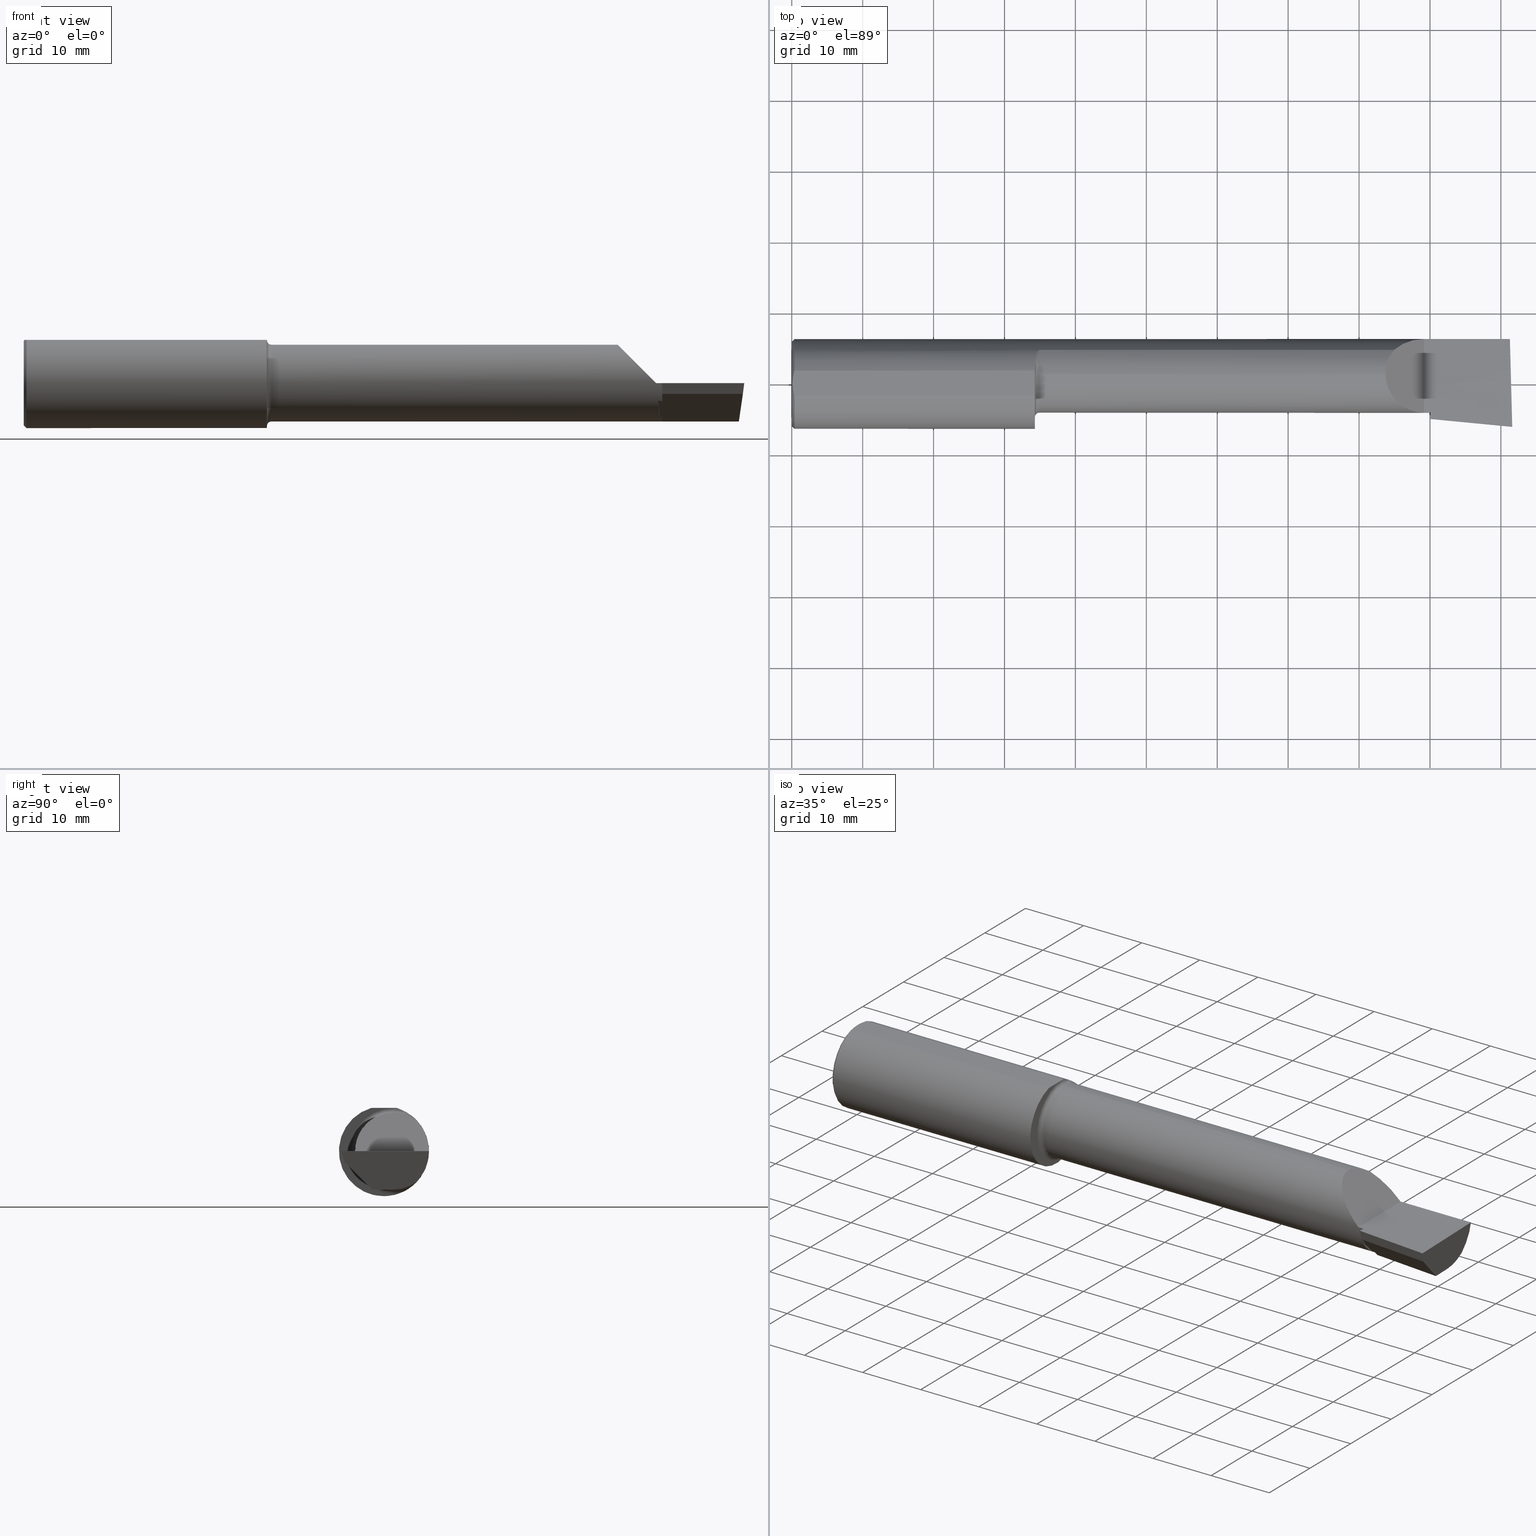
[diagram: canonical four-view strip — front | top / right | iso, engineering-drawing reading convention]
A machine part, canonical four-view strip (front | top / right | iso — engineering-drawing reading convention). The complete STEP part file that produces these views, byte-faithful:
ISO-10303-21;
HEADER;
FILE_DESCRIPTION (( 'STEP AP203' ),
    '1' );
FILE_NAME ('212157-LHB4902600.STEP',
    '2024-08-27T21:25:37',
    ( '' ),
    ( '' ),
    'SwSTEP 2.0',
    'SolidWorks 2024',
    '' );
FILE_SCHEMA (( 'CONFIG_CONTROL_DESIGN' ));
ENDSEC;

DATA;
#1 = AXIS2_PLACEMENT_3D ( 'NONE', #446, #450, #163 ) ;
#2 = CYLINDRICAL_SURFACE ( 'NONE', #194, 0.2131500000000001172 ) ;
#3 = CC_DESIGN_APPROVAL ( #387, ( #364 ) ) ;
#4 = FACE_OUTER_BOUND ( 'NONE', #102, .T. ) ;
#5 = ADVANCED_FACE ( 'NONE', ( #20 ), #556, .F. ) ;
#6 = ORIENTED_EDGE ( 'NONE', *, *, #152, .T. ) ;
#7 = CARTESIAN_POINT ( 'NONE',  ( 1.350000000000000089, 0.05299999999999998462, 0.000000000000000000 ) ) ;
#8 = LINE ( 'NONE', #240, #511 ) ;
#9 = ADVANCED_FACE ( 'NONE', ( #192 ), #590, .F. ) ;
#10 = ADVANCED_FACE ( 'NONE', ( #406 ), #189, .F. ) ;
#11 = ORIENTED_EDGE ( 'NONE', *, *, #284, .F. ) ;
#12 = COORDINATED_UNIVERSAL_TIME_OFFSET ( 8, 0, .BEHIND. ) ;
#13 = B_SPLINE_CURVE_WITH_KNOTS ( 'NONE', 3,
 ( #359, #78, #254, #309, #537, #716, #720, #126, #18, #644, #477, #481, #356, #412 ),
 .UNSPECIFIED., .F., .F.,
 ( 4, 2, 2, 2, 2, 2, 4 ),
 ( 1.967619685288262155E-07, 0.0001090840123077900287, 0.0002179712626470512338, 0.0004357457633255848385, 0.0008712947646826517227, 0.001742392767396792538, 0.003484588772825071568 ),
 .UNSPECIFIED. ) ;
#14 = LINE ( 'NONE', #585, #606 ) ;
#15 = ORIENTED_EDGE ( 'NONE', *, *, #437, .F. ) ;
#16 = COORDINATED_UNIVERSAL_TIME_OFFSET ( 8, 0, .BEHIND. ) ;
#17 = VECTOR ( 'NONE', #681, 39.37007874015748143 ) ;
#18 = CARTESIAN_POINT ( 'NONE',  ( 1.361285743882607813, 0.1704402150608099187, -0.1827701868778712491 ) ) ;
#19 = VECTOR ( 'NONE', #659, 39.37007874015748143 ) ;
#20 = FACE_OUTER_BOUND ( 'NONE', #502, .T. ) ;
#21 = EDGE_CURVE ( 'NONE', #478, #242, #550, .T. ) ;
#22 = CARTESIAN_POINT ( 'NONE',  ( 0.01499999999999965423, -0.06997856814768402267, 0.2398500000000000076 ) ) ;
#23 = VERTEX_POINT ( 'NONE', #205 ) ;
#24 = CC_DESIGN_DATE_AND_TIME_ASSIGNMENT ( #370, #209, ( #724 ) ) ;
#25 =( NAMED_UNIT ( * ) PLANE_ANGLE_UNIT ( ) SI_UNIT ( $, .RADIAN. ) );
#26 = CARTESIAN_POINT ( 'NONE',  ( 1.375000000000000000, 0.05299999999999998462, 0.2131500000000002559 ) ) ;
#27 = VERTEX_POINT ( 'NONE', #97 ) ;
#28 = DIRECTION ( 'NONE',  ( 0.000000000000000000, 0.000000000000000000, -1.000000000000000000 ) ) ;
#29 = CIRCLE ( 'NONE', #1, 0.2348499999999996424 ) ;
#30 = ORIENTED_EDGE ( 'NONE', *, *, #319, .T. ) ;
#31 = CIRCLE ( 'NONE', #474, 0.2131500000000002559 ) ;
#32 = CARTESIAN_POINT ( 'NONE',  ( 3.522499172395930245, -0.1369718963205480700, -0.09666230448512481976 ) ) ;
#33 = LINE ( 'NONE', #273, #17 ) ;
#34 = ORIENTED_EDGE ( 'NONE', *, *, #120, .F. ) ;
#35 = DIRECTION ( 'NONE',  ( 0.000000000000000000, 0.000000000000000000, 1.000000000000000000 ) ) ;
#36 = LINE ( 'NONE', #327, #710 ) ;
#37 = VERTEX_POINT ( 'NONE', #726 ) ;
#38 = ADVANCED_FACE ( 'NONE', ( #441 ), #643, .T. ) ;
#39 = DIRECTION ( 'NONE',  ( -1.000000000000000000, -0.000000000000000000, -0.000000000000000000 ) ) ;
#40 = CARTESIAN_POINT ( 'NONE',  ( 1.350331894516964448, 0.1014003285145106820, 0.2286243840132591576 ) ) ;
#41 = EDGE_LOOP ( 'NONE', ( #348, #357, #713, #362 ) ) ;
#42 = TOROIDAL_SURFACE ( 'NONE', #712, 0.2381500000000002781, 0.02499999999999993894 ) ;
#43 = CARTESIAN_POINT ( 'NONE',  ( 0.000000000000000000, 2.967931517733608178E-17, 0.2348499999999996424 ) ) ;
#44 = DIRECTION ( 'NONE',  ( 0.000000000000000000, -0.7025528302622683352, 0.7116315905652843554 ) ) ;
#45 = ORIENTED_EDGE ( 'NONE', *, *, #165, .F. ) ;
#46 = DIRECTION ( 'NONE',  ( 0.000000000000000000, -0.3019700370129918543, 0.9533174165755979867 ) ) ;
#47 = DIRECTION ( 'NONE',  ( -1.000000000000000000, -0.000000000000000000, -0.000000000000000000 ) ) ;
#48 = VERTEX_POINT ( 'NONE', #375 ) ;
#49 = DIRECTION ( 'NONE',  ( 0.000000000000000000, 0.000000000000000000, 1.000000000000000000 ) ) ;
#50 = CARTESIAN_POINT ( 'NONE',  ( 1.350000000000000089, 0.05299999999999998462, 0.2381500000000002781 ) ) ;
#51 = ORIENTED_EDGE ( 'NONE', *, *, #130, .T. ) ;
#52 = VECTOR ( 'NONE', #383, 39.37007874015748143 ) ;
#53 = CARTESIAN_POINT ( 'NONE',  ( 3.531082512009719565, -0.04783050615766638175, -0.1877927888072085660 ) ) ;
#54 = CARTESIAN_POINT ( 'NONE',  ( 0.01499999999999998904, 0.06997856814768362022, 0.2398500000000000076 ) ) ;
#55 = ORIENTED_EDGE ( 'NONE', *, *, #664, .F. ) ;
#56 = DIRECTION ( 'NONE',  ( -1.000000000000000000, -0.000000000000000000, -0.000000000000000000 ) ) ;
#57 = CARTESIAN_POINT ( 'NONE',  ( 3.296849999999997394, -0.07186037918017486315, 0.2131500000000002004 ) ) ;
#58 = ORIENTED_EDGE ( 'NONE', *, *, #534, .F. ) ;
#59 = EDGE_CURVE ( 'NONE', #196, #23, #77, .T. ) ;
#60 = LINE ( 'NONE', #693, #631 ) ;
#61 = CARTESIAN_POINT ( 'NONE',  ( 0.000000000000000000, 0.000000000000000000, 0.000000000000000000 ) ) ;
#62 = ORIENTED_EDGE ( 'NONE', *, *, #740, .F. ) ;
#63 = CIRCLE ( 'NONE', #204, 0.2498499999999999888 ) ;
#64 = PERSON_AND_ORGANIZATION_ROLE ( 'design_owner' ) ;
#65 = AXIS2_PLACEMENT_3D ( 'NONE', #227, #443, #231 ) ;
#66 = EDGE_CURVE ( 'NONE', #27, #249, #33, .T. ) ;
#67 = CARTESIAN_POINT ( 'NONE',  ( 3.509999999999999787, -0.1601500000000002089, -6.245698675651498620E-17 ) ) ;
#68 = ORIENTED_EDGE ( 'NONE', *, *, #243, .T. ) ;
#69 = DATE_AND_TIME ( #706, #247 ) ;
#70 = PLANE ( 'NONE',  #175 ) ;
#71 = CARTESIAN_POINT ( 'NONE',  ( 3.544999999999999929, -0.2043384830701200638, 0.000000000000000000 ) ) ;
#72 = DIRECTION ( 'NONE',  ( 0.9953961983671787417, -0.09584575252022421721, -0.000000000000000000 ) ) ;
#73 = DIRECTION ( 'NONE',  ( -1.000000000000000000, -0.000000000000000000, -0.000000000000000000 ) ) ;
#74 = ADVANCED_FACE ( 'NONE', ( #386 ), #505, .F. ) ;
#75 = CARTESIAN_POINT ( 'NONE',  ( 3.522499172395930245, -0.1369718963205480700, -0.09666230448512481976 ) ) ;
#76 = CIRCLE ( 'NONE', #496, 0.2498499999999999888 ) ;
#77 = CIRCLE ( 'NONE', #429, 0.2381500000000002781 ) ;
#78 = CARTESIAN_POINT ( 'NONE',  ( 1.373547768521294454, 0.1868028301886778819, -0.1659208399614104379 ) ) ;
#79 = AXIS2_PLACEMENT_3D ( 'NONE', #757, #452, #714 ) ;
#80 = ORIENTED_EDGE ( 'NONE', *, *, #425, .T. ) ;
#81 = CARTESIAN_POINT ( 'NONE',  ( 3.519046046773248282, -0.1728339770796963881, -0.06000000000000012962 ) ) ;
#82 = VERTEX_POINT ( 'NONE', #198 ) ;
#83 = EDGE_CURVE ( 'NONE', #702, #169, #523, .T. ) ;
#84 = CARTESIAN_POINT ( 'NONE',  ( 1.375000000000000000, 0.05299999999999998462, 0.2381500000000002781 ) ) ;
#85 = VERTEX_POINT ( 'NONE', #320 ) ;
#86 = EDGE_CURVE ( 'NONE', #448, #23, #63, .T. ) ;
#87 = CARTESIAN_POINT ( 'NONE',  ( 3.527364221733843230, -0.08644642713185432537, -0.1670589636038931347 ) ) ;
#88 = AXIS2_PLACEMENT_3D ( 'NONE', #212, #47, #261 ) ;
#89 = CARTESIAN_POINT ( 'NONE',  ( 1.373549916698492135, 0.1868028301886779374, 0.1659208399614103269 ) ) ;
#90 = VECTOR ( 'NONE', #500, 39.37007874015748143 ) ;
#91 = ORIENTED_EDGE ( 'NONE', *, *, #21, .T. ) ;
#92 = PERSON_AND_ORGANIZATION_ROLE ( 'design_supplier' ) ;
#93 = LINE ( 'NONE', #374, #52 ) ;
#94 = DIRECTION ( 'NONE',  ( -1.000000000000000000, -0.000000000000000000, -0.000000000000000000 ) ) ;
#95 = ORIENTED_EDGE ( 'NONE', *, *, #540, .F. ) ;
#96 = DIRECTION ( 'NONE',  ( -1.000000000000000000, -0.000000000000000000, -0.000000000000000000 ) ) ;
#97 = CARTESIAN_POINT ( 'NONE',  ( 3.992367153641839472, -0.2184096159518785774, -0.06000000000000012268 ) ) ;
#98 = EDGE_LOOP ( 'NONE', ( #95, #108, #55, #650, #434 ) ) ;
#99 = CARTESIAN_POINT ( 'NONE',  ( 3.968970726278978400, 0.1868028301886787701, -0.1659208399614094387 ) ) ;
#100 = DIRECTION ( 'NONE',  ( -0.000000000000000000, 0.000000000000000000, 1.000000000000000000 ) ) ;
#101 = VECTOR ( 'NONE', #290, 39.37007874015748854 ) ;
#102 = EDGE_LOOP ( 'NONE', ( #15, #91, #417 ) ) ;
#103 = CIRCLE ( 'NONE', #373, 0.2498499999999999888 ) ;
#104 = CARTESIAN_POINT ( 'NONE',  ( 3.544999999999999929, -0.1952503421026562380, 0.002878732955684667853 ) ) ;
#105 = CARTESIAN_POINT ( 'NONE',  ( 1.350000000000000089, 0.05299999999999998462, 0.000000000000000000 ) ) ;
#106 = CARTESIAN_POINT ( 'NONE',  ( 0.01499999999999998904, 0.000000000000000000, -0.2498499999999999888 ) ) ;
#107 = DIRECTION ( 'NONE',  ( 0.000000000000000000, 0.000000000000000000, 1.000000000000000000 ) ) ;
#108 = ORIENTED_EDGE ( 'NONE', *, *, #405, .T. ) ;
#109 = FACE_OUTER_BOUND ( 'NONE', #41, .T. ) ;
#110 = DIRECTION ( 'NONE',  ( 1.000000000000000000, 0.000000000000000000, 0.000000000000000000 ) ) ;
#111 = ORIENTED_EDGE ( 'NONE', *, *, #552, .F. ) ;
#112 = CIRCLE ( 'NONE', #535, 0.02499999999999993894 ) ;
#113 = FACE_OUTER_BOUND ( 'NONE', #531, .T. ) ;
#114 = CARTESIAN_POINT ( 'NONE',  ( 3.531082512009719565, -0.04783050615766638175, -0.1877927888072085660 ) ) ;
#115 = ORIENTED_EDGE ( 'NONE', *, *, #571, .F. ) ;
#116 = CARTESIAN_POINT ( 'NONE',  ( 4.000317226026191442, -0.2499915017238489578, -1.366403949535045289E-16 ) ) ;
#117 = CARTESIAN_POINT ( 'NONE',  ( 0.000000000000000000, 0.000000000000000000, 0.000000000000000000 ) ) ;
#118 = ORIENTED_EDGE ( 'NONE', *, *, #544, .T. ) ;
#119 = PRODUCT_DEFINITION ( 'UNKNOWN', '', #364, #223 ) ;
#120 = EDGE_CURVE ( 'NONE', #213, #27, #547, .T. ) ;
#121 = PLANE ( 'NONE',  #330 ) ;
#122 = ORIENTED_EDGE ( 'NONE', *, *, #86, .T. ) ;
#123 = CC_DESIGN_PERSON_AND_ORGANIZATION_ASSIGNMENT ( #548, #492, ( #364 ) ) ;
#124 = AXIS2_PLACEMENT_3D ( 'NONE', #588, #479, #707 ) ;
#125 =( LENGTH_UNIT ( ) NAMED_UNIT ( * ) SI_UNIT ( $, .METRE. ) );
#126 = CARTESIAN_POINT ( 'NONE',  ( 1.362797058507744907, 0.1743943839926571093, -0.1789958554125714307 ) ) ;
#127 = ORIENTED_EDGE ( 'NONE', *, *, #59, .F. ) ;
#128 = APPROVAL_STATUS ( 'not_yet_approved' ) ;
#129 = CARTESIAN_POINT ( 'NONE',  ( 3.519046046773248282, -0.1728339770796963881, -0.06000000000000012962 ) ) ;
#130 = EDGE_CURVE ( 'NONE', #675, #756, #668, .T. ) ;
#131 = ORIENTED_EDGE ( 'NONE', *, *, #272, .T. ) ;
#132 = DATE_AND_TIME ( #244, #658 ) ;
#133 = LINE ( 'NONE', #420, #19 ) ;
#134 = EDGE_LOOP ( 'NONE', ( #30, #366 ) ) ;
#135 = CARTESIAN_POINT ( 'NONE',  ( 1.350000000000000089, 0.05300000000000001238, -0.2381500000000002781 ) ) ;
#136 = CIRCLE ( 'NONE', #510, 0.02499999999999993894 ) ;
#137 = FACE_OUTER_BOUND ( 'NONE', #262, .T. ) ;
#138 = DIRECTION ( 'NONE',  ( -0.09584575252022362046, -0.9953961983671787417, 0.000000000000000000 ) ) ;
#139 =( BOUNDED_CURVE ( )  B_SPLINE_CURVE ( 3, ( #577, #57, #524, #67 ),
 .UNSPECIFIED., .F., .T. ) 
 B_SPLINE_CURVE_WITH_KNOTS ( ( 4, 4 ),
 ( 0.000000000000000000, 1.570796326794896780 ),
 .UNSPECIFIED. ) 
 CURVE ( )  GEOMETRIC_REPRESENTATION_ITEM ( )  RATIONAL_B_SPLINE_CURVE ( ( 1.000000000000000000, 0.8047378541243649375, 0.8047378541243649375, 1.000000000000000000 ) ) 
 REPRESENTATION_ITEM ( '' )  );
#140 = PERSON ( 'UNSPECIFIED', 'UNSPECIFIED', 'UNSPECIFIED', ('UNSPECIFIED'), ('UNSPECIFIED'), ('UNSPECIFIED') ) ;
#141 = PERSON_AND_ORGANIZATION ( #140, #235 ) ;
#142 = DIRECTION ( 'NONE',  ( -0.000000000000000000, 2.565624566557734573E-16, 1.000000000000000000 ) ) ;
#143 = ORIENTED_EDGE ( 'NONE', *, *, #678, .T. ) ;
#144 = CARTESIAN_POINT ( 'NONE',  ( 1.361269318387891447, 0.1703938977634091023, 0.1828127877825263536 ) ) ;
#145 = FACE_OUTER_BOUND ( 'NONE', #626, .T. ) ;
#146 = CLOSED_SHELL ( 'NONE', ( #5, #694, #38, #633, #482, #715, #619, #730, #363, #401, #589, #275, #267, #185, #285, #413, #609, #74, #10, #9, #323 ) ) ;
#147 = CARTESIAN_POINT ( 'NONE',  ( 3.544999999999999929, -0.2196470971618798007, -0.01511331185988431559 ) ) ;
#148 = CIRCLE ( 'NONE', #567, 0.2381500000000002781 ) ;
#149 = CC_DESIGN_APPROVAL ( #210, ( #724 ) ) ;
#150 = VERTEX_POINT ( 'NONE', #674 ) ;
#151 = DIRECTION ( 'NONE',  ( -1.000000000000000000, -0.000000000000000000, -0.000000000000000000 ) ) ;
#152 = EDGE_CURVE ( 'NONE', #312, #696, #76, .T. ) ;
#153 = CARTESIAN_POINT ( 'NONE',  ( 1.350000000000000089, 0.000000000000000000, 0.000000000000000000 ) ) ;
#154 = EDGE_LOOP ( 'NONE', ( #533, #80, #451, #514 ) ) ;
#155 = CALENDAR_DATE ( 2024, 27, 8 ) ;
#156 = CARTESIAN_POINT ( 'NONE',  ( 2.459999999999999964, 0.1868028301886787701, -0.1659208399614094387 ) ) ;
#157 = CARTESIAN_POINT ( 'NONE',  ( 1.375000000000000000, 0.1868028301886778542, 0.1659208399614103824 ) ) ;
#158 = ORIENTED_EDGE ( 'NONE', *, *, #86, .F. ) ;
#159 = FACE_OUTER_BOUND ( 'NONE', #637, .T. ) ;
#160 = DIRECTION ( 'NONE',  ( 1.000000000000000000, 0.000000000000000000, 0.000000000000000000 ) ) ;
#161 = AXIS2_PLACEMENT_3D ( 'NONE', #61, #628, #180 ) ;
#162 = ORIENTED_EDGE ( 'NONE', *, *, #305, .T. ) ;
#163 = DIRECTION ( 'NONE',  ( 0.000000000000000000, 0.000000000000000000, 1.000000000000000000 ) ) ;
#164 = VERTEX_POINT ( 'NONE', #622 ) ;
#165 = EDGE_CURVE ( 'NONE', #360, #85, #36, .T. ) ;
#166 = CARTESIAN_POINT ( 'NONE',  ( 0.004999999999999972349, 0.01185123536186988465, 0.2398500000000000631 ) ) ;
#167 =( BOUNDED_CURVE ( )  B_SPLINE_CURVE ( 3, ( #549, #558, #543, #381 ),
 .UNSPECIFIED., .F., .T. ) 
 B_SPLINE_CURVE_WITH_KNOTS ( ( 4, 4 ),
 ( 5.604538515477365479, 6.283185307179586232 ),
 .UNSPECIFIED. ) 
 CURVE ( )  GEOMETRIC_REPRESENTATION_ITEM ( )  RATIONAL_B_SPLINE_CURVE ( ( 1.000000000000000000, 0.9619867256453044080, 0.9619867256453044080, 1.000000000000000000 ) ) 
 REPRESENTATION_ITEM ( '' )  );
#168 = CARTESIAN_POINT ( 'NONE',  ( 3.509999999999999787, -0.2500000000000000555, -6.245698675651498620E-17 ) ) ;
#169 = VERTEX_POINT ( 'NONE', #562 ) ;
#170 = CARTESIAN_POINT ( 'NONE',  ( 3.540481425188584996, -0.04977693083852388622, -0.1867379188486351094 ) ) ;
#171 = CARTESIAN_POINT ( 'NONE',  ( 3.344079160038586629, 0.1868028301886766884, 0.1659208399614114093 ) ) ;
#172 = EDGE_CURVE ( 'NONE', #23, #542, #580, .T. ) ;
#173 = ORIENTED_EDGE ( 'NONE', *, *, #405, .F. ) ;
#174 = VECTOR ( 'NONE', #522, 39.37007874015748143 ) ;
#175 = AXIS2_PLACEMENT_3D ( 'NONE', #81, #532, #466 ) ;
#176 = DIRECTION ( 'NONE',  ( -1.000000000000000000, -0.000000000000000000, -0.000000000000000000 ) ) ;
#177 = DIRECTION ( 'NONE',  ( 1.000000000000000000, 0.000000000000000000, 0.000000000000000000 ) ) ;
#178 = ORIENTED_EDGE ( 'NONE', *, *, #487, .F. ) ;
#179 = CARTESIAN_POINT ( 'NONE',  ( 0.009312860630924867100, 0.04712480857212034135, 0.2398500000000000076 ) ) ;
#180 = DIRECTION ( 'NONE',  ( 0.000000000000000000, 0.000000000000000000, -1.000000000000000000 ) ) ;
#181 = ORIENTED_EDGE ( 'NONE', *, *, #464, .F. ) ;
#182 = APPROVAL_STATUS ( 'not_yet_approved' ) ;
#183 = DIRECTION ( 'NONE',  ( -0.000000000000000000, 1.000000000000000000, -2.565624566557734573E-16 ) ) ;
#184 = DIRECTION ( 'NONE',  ( -0.9953961983671788527, 0.09584575252022363434, -3.696849664254116701E-16 ) ) ;
#185 = ADVANCED_FACE ( 'NONE', ( #666 ), #697, .T. ) ;
#186 = AXIS2_PLACEMENT_3D ( 'NONE', #259, #322, #486 ) ;
#187 = PLANE ( 'NONE',  #525 ) ;
#188 = ORIENTED_EDGE ( 'NONE', *, *, #83, .T. ) ;
#189 = PLANE ( 'NONE',  #292 ) ;
#190 = CARTESIAN_POINT ( 'NONE',  ( 3.966963271960172399, 0.05299999999999996381, -0.2131499999999999784 ) ) ;
#191 = EDGE_CURVE ( 'NONE', #756, #169, #136, .T. ) ;
#192 = FACE_OUTER_BOUND ( 'NONE', #134, .T. ) ;
#193 = VECTOR ( 'NONE', #701, 39.37007874015748143 ) ;
#194 = AXIS2_PLACEMENT_3D ( 'NONE', #635, #392, #281 ) ;
#195 = DIRECTION ( 'NONE',  ( 0.000000000000000000, 1.000000000000000000, -1.138839417068643993E-16 ) ) ;
#196 = VERTEX_POINT ( 'NONE', #50 ) ;
#197 = DIMENSIONAL_EXPONENTS ( 1.000000000000000000, 0.000000000000000000, 0.000000000000000000, 0.000000000000000000, 0.000000000000000000, 0.000000000000000000, 0.000000000000000000 ) ;
#198 = CARTESIAN_POINT ( 'NONE',  ( 0.004999999999999696527, 5.665694022114171174E-17, 0.2398500000000000076 ) ) ;
#199 = CARTESIAN_POINT ( 'NONE',  ( 3.519046046773248282, -0.1728339770796963881, -0.06000000000000012962 ) ) ;
#200 = CARTESIAN_POINT ( 'NONE',  ( 1.369294329172793256, 0.1841965204963173230, 0.1688138510234151457 ) ) ;
#201 = EDGE_LOOP ( 'NONE', ( #380, #143, #340, #115, #58 ) ) ;
#202 = DATE_AND_TIME ( #422, #447 ) ;
#203 = CARTESIAN_POINT ( 'NONE',  ( 3.988460977461673274, -0.06683733097719073146, -0.2131499999999999506 ) ) ;
#204 = AXIS2_PLACEMENT_3D ( 'NONE', #153, #94, #554 ) ;
#205 = CARTESIAN_POINT ( 'NONE',  ( 1.350000000000000089, 0.08036415094339502407, 0.2365726648265754628 ) ) ;
#206 = AXIS2_PLACEMENT_3D ( 'NONE', #686, #395, #576 ) ;
#207 = ORIENTED_EDGE ( 'NONE', *, *, #191, .T. ) ;
#208 = PRODUCT_DEFINITION_SHAPE ( 'NONE', 'NONE',  #119 ) ;
#209 = DATE_TIME_ROLE ( 'classification_date' ) ;
#210 = APPROVAL ( #614, 'UNSPECIFIED' ) ;
#211 = CARTESIAN_POINT ( 'NONE',  ( 1.375000000000000000, 0.05299999999999998462, 0.000000000000000000 ) ) ;
#212 = CARTESIAN_POINT ( 'NONE',  ( 1.350000000000000089, 0.05299999999999998462, 0.000000000000000000 ) ) ;
#213 = VERTEX_POINT ( 'NONE', #573 ) ;
#214 =( BOUNDED_CURVE ( )  B_SPLINE_CURVE ( 3, ( #615, #608, #493, #99 ),
 .UNSPECIFIED., .F., .T. ) 
 B_SPLINE_CURVE_WITH_KNOTS ( ( 4, 4 ),
 ( 6.060671081087565248, 6.739317872789799324 ),
 .UNSPECIFIED. ) 
 CURVE ( )  GEOMETRIC_REPRESENTATION_ITEM ( )  RATIONAL_B_SPLINE_CURVE ( ( 1.000000000000000000, 0.9619867256453029647, 0.9619867256453029647, 1.000000000000000000 ) ) 
 REPRESENTATION_ITEM ( '' )  );
#215 = CARTESIAN_POINT ( 'NONE',  ( 3.296849999999997838, 0.05299999999999998462, 0.2131500000000001172 ) ) ;
#216 = DIRECTION ( 'NONE',  ( 0.000000000000000000, 0.000000000000000000, 1.000000000000000000 ) ) ;
#217 = EDGE_CURVE ( 'NONE', #321, #696, #390, .T. ) ;
#218 = EDGE_LOOP ( 'NONE', ( #439, #729, #629, #6, #277 ) ) ;
#219 = DIRECTION ( 'NONE',  ( 0.000000000000000000, 0.000000000000000000, -1.000000000000000000 ) ) ;
#220 = CIRCLE ( 'NONE', #752, 0.2348499999999996424 ) ;
#221 = ORIENTED_EDGE ( 'NONE', *, *, #379, .T. ) ;
#222 = VECTOR ( 'NONE', #295, 39.37007874015748143 ) ;
#223 = DESIGN_CONTEXT ( 'detailed design', #735, 'design' ) ;
#224 = DIRECTION ( 'NONE',  ( -1.000000000000000000, -0.000000000000000000, -0.000000000000000000 ) ) ;
#225 = DIRECTION ( 'NONE',  ( 0.000000000000000000, 1.000000000000000000, -1.138839417068643993E-16 ) ) ;
#226 = ORIENTED_EDGE ( 'NONE', *, *, #552, .T. ) ;
#227 = CARTESIAN_POINT ( 'NONE',  ( 1.375000000000000000, 0.05299999999999998462, 0.000000000000000000 ) ) ;
#228 = FACE_OUTER_BOUND ( 'NONE', #98, .T. ) ;
#229 = ORIENTED_EDGE ( 'NONE', *, *, #508, .T. ) ;
#230 = EDGE_CURVE ( 'NONE', #461, #82, #463, .T. ) ;
#231 = DIRECTION ( 'NONE',  ( 0.000000000000000000, 0.000000000000000000, 1.000000000000000000 ) ) ;
#232 = CARTESIAN_POINT ( 'NONE',  ( 3.544999999999999929, -0.2500000000000000555, -6.775237339413629936E-17 ) ) ;
#233 = VERTEX_POINT ( 'NONE', #279 ) ;
#234 = VECTOR ( 'NONE', #636, 39.37007874015748854 ) ;
#235 = ORGANIZATION ( 'UNSPECIFIED', 'UNSPECIFIED', '' ) ;
#236 = CARTESIAN_POINT ( 'NONE',  ( 1.350000000000000089, 0.08036415094339502407, -0.2365726648265754628 ) ) ;
#237 = DIRECTION ( 'NONE',  ( 0.000000000000000000, 0.000000000000000000, -1.000000000000000000 ) ) ;
#238 = ORIENTED_EDGE ( 'NONE', *, *, #647, .T. ) ;
#239 =( NAMED_UNIT ( * ) SI_UNIT ( $, .STERADIAN. ) SOLID_ANGLE_UNIT ( ) );
#240 = CARTESIAN_POINT ( 'NONE',  ( 3.544999999999999929, 0.05299999999999996381, -0.2131499999999999784 ) ) ;
#241 =( BOUNDED_CURVE ( )  B_SPLINE_CURVE ( 3, ( #553, #87, #318, #32 ),
 .UNSPECIFIED., .F., .F. ) 
 B_SPLINE_CURVE_WITH_KNOTS ( ( 4, 4 ),
 ( 5.205137849474835932, 5.812503257434991966 ),
 .UNSPECIFIED. ) 
 CURVE ( )  GEOMETRIC_REPRESENTATION_ITEM ( )  RATIONAL_B_SPLINE_CURVE ( ( 1.000000000000000000, 0.9694944665783495896, 0.9694944665783495896, 1.000000000000000000 ) ) 
 REPRESENTATION_ITEM ( '' )  );
#242 = VERTEX_POINT ( 'NONE', #336 ) ;
#243 = EDGE_CURVE ( 'NONE', #461, #321, #220, .T. ) ;
#244 = CALENDAR_DATE ( 2024, 27, 8 ) ;
#245 = ORIENTED_EDGE ( 'NONE', *, *, #354, .T. ) ;
#246 = COORDINATED_UNIVERSAL_TIME_OFFSET ( 8, 0, .BEHIND. ) ;
#247 = LOCAL_TIME ( 14, 25, 37.00000000000000000, #16 ) ;
#248 = DIRECTION ( 'NONE',  ( -0.02677973311239342791, 0.9996413586354002678, -2.562123829027519895E-16 ) ) ;
#249 = VERTEX_POINT ( 'NONE', #512 ) ;
#250 = LENGTH_MEASURE_WITH_UNIT ( LENGTH_MEASURE( 0.02539999999999999897 ), #125 );
#251 = DIRECTION ( 'NONE',  ( 0.000000000000000000, -1.000000000000000000, 2.565624566557734573E-16 ) ) ;
#252 = ORIENTED_EDGE ( 'NONE', *, *, #431, .T. ) ;
#253 = APPROVAL_ROLE ( '' ) ;
#254 = CARTESIAN_POINT ( 'NONE',  ( 1.372232603162240716, 0.1862758070845859371, -0.1665151405181443944 ) ) ;
#255 = EDGE_CURVE ( 'NONE', #85, #242, #352, .T. ) ;
#256 = ORIENTED_EDGE ( 'NONE', *, *, #66, .F. ) ;
#257 = PERSON_AND_ORGANIZATION_ROLE ( 'classification_officer' ) ;
#258 = VECTOR ( 'NONE', #72, 39.37007874015748143 ) ;
#259 = CARTESIAN_POINT ( 'NONE',  ( 0.01499999999999998904, 0.000000000000000000, 0.000000000000000000 ) ) ;
#260 = CARTESIAN_POINT ( 'NONE',  ( 3.986926801651458074, 0.2498499999999998500, -1.346424553798598529E-16 ) ) ;
#261 = DIRECTION ( 'NONE',  ( 0.000000000000000000, 0.000000000000000000, 1.000000000000000000 ) ) ;
#262 = EDGE_LOOP ( 'NONE', ( #11, #483, #131, #688 ) ) ;
#263 = ADVANCED_BREP_SHAPE_REPRESENTATION ( '212157-LHB4902600', ( #460, #342 ), #620 ) ;
#264 = DIRECTION ( 'NONE',  ( 0.000000000000000000, 0.000000000000000000, 1.000000000000000000 ) ) ;
#265 = DIRECTION ( 'NONE',  ( 0.000000000000000000, 0.000000000000000000, -1.000000000000000000 ) ) ;
#266 = ORIENTED_EDGE ( 'NONE', *, *, #705, .F. ) ;
#267 = ADVANCED_FACE ( 'NONE', ( #403 ), #396, .F. ) ;
#268 = APPROVAL_PERSON_ORGANIZATION ( #355, #598, #253 ) ;
#269 = CARTESIAN_POINT ( 'NONE',  ( 1.367022161877249786, 0.1817412653940176370, 0.1714670312165152977 ) ) ;
#270 = EDGE_LOOP ( 'NONE', ( #653, #600, #245, #708, #683, #111, #742, #723, #122, #517, #238, #495, #369 ) ) ;
#271 = CARTESIAN_POINT ( 'NONE',  ( 3.544999999999999929, -0.02413689554465599241, -0.2131499999999999506 ) ) ;
#272 = EDGE_CURVE ( 'NONE', #509, #37, #139, .T. ) ;
#273 = CARTESIAN_POINT ( 'NONE',  ( 3.984159346317754036, -0.1618214701366293695, -0.1165188729350217778 ) ) ;
#274 = CARTESIAN_POINT ( 'NONE',  ( 0.004999999999999696527, 5.665694022114171174E-17, 0.2398500000000000076 ) ) ;
#275 = ADVANCED_FACE ( 'NONE', ( #4 ), #564, .F. ) ;
#276 = CARTESIAN_POINT ( 'NONE',  ( 1.351680899895053800, 0.1215019751025615963, 0.2186055937858621401 ) ) ;
#277 = ORIENTED_EDGE ( 'NONE', *, *, #217, .F. ) ;
#278 = CARTESIAN_POINT ( 'NONE',  ( 0.000000000000000000, 0.000000000000000000, 0.000000000000000000 ) ) ;
#279 = CARTESIAN_POINT ( 'NONE',  ( 3.544999999999999929, -0.1943384830701201105, 4.684692457885201525E-16 ) ) ;
#280 = EDGE_LOOP ( 'NONE', ( #579, #465, #314, #226, #613 ) ) ;
#281 = DIRECTION ( 'NONE',  ( 0.000000000000000000, 0.000000000000000000, 1.000000000000000000 ) ) ;
#282 = LINE ( 'NONE', #632, #618 ) ;
#283 = VERTEX_POINT ( 'NONE', #114 ) ;
#284 = EDGE_CURVE ( 'NONE', #164, #48, #603, .T. ) ;
#285 = ADVANCED_FACE ( 'NONE', ( #228 ), #121, .F. ) ;
#286 = CARTESIAN_POINT ( 'NONE',  ( 0.01499999999999965423, -0.06997856814768402267, 0.2398500000000000076 ) ) ;
#287 = ORIENTED_EDGE ( 'NONE', *, *, #487, .T. ) ;
#288 = CC_DESIGN_PERSON_AND_ORGANIZATION_ASSIGNMENT ( #737, #257, ( #724 ) ) ;
#289 = CARTESIAN_POINT ( 'NONE',  ( 0.000000000000000000, 0.06997856814768362022, 0.2398500000000000076 ) ) ;
#290 = DIRECTION ( 'NONE',  ( 0.7071067811865389130, 8.659560562355037629E-17, 0.7071067811865560104 ) ) ;
#291 = ORIENTED_EDGE ( 'NONE', *, *, #671, .F. ) ;
#292 = AXIS2_PLACEMENT_3D ( 'NONE', #71, #301, #616 ) ;
#293 = VECTOR ( 'NONE', #176, 39.37007874015748143 ) ;
#294 = APPLICATION_PROTOCOL_DEFINITION ( 'international standard', 'config_control_design', 1994, #735 ) ;
#295 = DIRECTION ( 'NONE',  ( 1.000000000000000000, 0.000000000000000000, 0.000000000000000000 ) ) ;
#296 = EDGE_CURVE ( 'NONE', #321, #461, #29, .T. ) ;
#297 = ORIENTED_EDGE ( 'NONE', *, *, #745, .T. ) ;
#298 = PERSON_AND_ORGANIZATION ( #140, #235 ) ;
#299 = CARTESIAN_POINT ( 'NONE',  ( 0.005880636388018911122, -0.02358947477502554638, 0.2398499999999999799 ) ) ;
#300 = EDGE_CURVE ( 'NONE', #37, #48, #625, .T. ) ;
#301 = DIRECTION ( 'NONE',  ( 1.000000000000000000, 0.000000000000000000, 0.000000000000000000 ) ) ;
#302 =( CONVERSION_BASED_UNIT ( 'INCH', #250 ) LENGTH_UNIT ( ) NAMED_UNIT ( #197 ) );
#303 = PLANE ( 'NONE',  #407 ) ;
#304 = ORIENTED_EDGE ( 'NONE', *, *, #682, .T. ) ;
#305 = EDGE_CURVE ( 'NONE', #376, #233, #453, .T. ) ;
#306 = AXIS2_PLACEMENT_3D ( 'NONE', #657, #184, #138 ) ;
#307 = CARTESIAN_POINT ( 'NONE',  ( 3.537805100486889565, -0.1353538176560922790, -0.09979413120600018339 ) ) ;
#308 = AXIS2_PLACEMENT_3D ( 'NONE', #211, #602, #743 ) ;
#309 = CARTESIAN_POINT ( 'NONE',  ( 1.370138573936400039, 0.1849738682364314157, -0.1679602226613270410 ) ) ;
#310 = VERTEX_POINT ( 'NONE', #568 ) ;
#311 = CARTESIAN_POINT ( 'NONE',  ( 3.509999999999999787, -0.2500000000000000555, -6.245698675651498620E-17 ) ) ;
#312 = VERTEX_POINT ( 'NONE', #54 ) ;
#313 = DIRECTION ( 'NONE',  ( 0.000000000000000000, -1.000000000000000000, 0.000000000000000000 ) ) ;
#314 = ORIENTED_EDGE ( 'NONE', *, *, #217, .T. ) ;
#315 =( BOUNDED_CURVE ( )  B_SPLINE_CURVE ( 3, ( #449, #170, #689, #53 ),
 .UNSPECIFIED., .F., .T. ) 
 B_SPLINE_CURVE_WITH_KNOTS ( ( 4, 4 ),
 ( 3.425081864342414573, 3.440661644967335508 ),
 .UNSPECIFIED. ) 
 CURVE ( )  GEOMETRIC_REPRESENTATION_ITEM ( )  RATIONAL_B_SPLINE_CURVE ( ( 1.000000000000000000, 0.9999797726385939445, 0.9999797726385939445, 1.000000000000000000 ) ) 
 REPRESENTATION_ITEM ( '' )  );
#316 = AXIS2_PLACEMENT_3D ( 'NONE', #677, #160, #265 ) ;
#317 = VECTOR ( 'NONE', #430, 39.37007874015748143 ) ;
#318 = CARTESIAN_POINT ( 'NONE',  ( 3.524413082451228973, -0.1170951804205965785, -0.1357263163794374672 ) ) ;
#319 = EDGE_CURVE ( 'NONE', #283, #310, #282, .T. ) ;
#320 = CARTESIAN_POINT ( 'NONE',  ( 3.544999999999999929, 0.05299999999999996381, -0.2131499999999999784 ) ) ;
#321 = VERTEX_POINT ( 'NONE', #758 ) ;
#322 = DIRECTION ( 'NONE',  ( -1.000000000000000000, -0.000000000000000000, -0.000000000000000000 ) ) ;
#323 = ADVANCED_FACE ( 'NONE', ( #695 ), #365, .T. ) ;
#324 = DIRECTION ( 'NONE',  ( 0.000000000000000000, 0.000000000000000000, 1.000000000000000000 ) ) ;
#325 = ORIENTED_EDGE ( 'NONE', *, *, #682, .F. ) ;
#326 = DIRECTION ( 'NONE',  ( 0.000000000000000000, 0.000000000000000000, 1.000000000000000000 ) ) ;
#327 = CARTESIAN_POINT ( 'NONE',  ( 4.000000000000000000, 0.05299999999999996381, -0.2131499999999999784 ) ) ;
#328 = EDGE_CURVE ( 'NONE', #717, #82, #578, .T. ) ;
#329 = LINE ( 'NONE', #676, #485 ) ;
#330 = AXIS2_PLACEMENT_3D ( 'NONE', #507, #750, #225 ) ;
#331 = LOCAL_TIME ( 14, 25, 37.00000000000000000, #246 ) ;
#332 = CARTESIAN_POINT ( 'NONE',  ( 3.983858394183930063, -0.1964039090909503738, -0.1268853457175435906 ) ) ;
#333 = CARTESIAN_POINT ( 'NONE',  ( 1.375000000000000000, 0.05299999999999998462, 0.000000000000000000 ) ) ;
#334 = DIRECTION ( 'NONE',  ( -1.000000000000000000, -0.000000000000000000, -0.000000000000000000 ) ) ;
#335 = CARTESIAN_POINT ( 'NONE',  ( 4.001130543297605868, -0.2382588589380726651, -1.367634472223958767E-16 ) ) ;
#336 = CARTESIAN_POINT ( 'NONE',  ( 3.544999999999999929, -0.05074392122494208318, -0.1861991442216451575 ) ) ;
#337 = ORIENTED_EDGE ( 'NONE', *, *, #255, .T. ) ;
#338 = DIRECTION ( 'NONE',  ( 0.9953961983671787417, -0.09584575252022418945, -1.501092988330048720E-16 ) ) ;
#339 = DIRECTION ( 'NONE',  ( -0.000000000000000000, 1.000000000000000000, -0.000000000000000000 ) ) ;
#340 = ORIENTED_EDGE ( 'NONE', *, *, #83, .F. ) ;
#341 = APPLICATION_CONTEXT ( 'configuration controlled 3d designs of mechanical parts and assemblies' ) ;
#342 = AXIS2_PLACEMENT_3D ( 'NONE', #349, #402, #638 ) ;
#343 = PLANE ( 'NONE',  #206 ) ;
#344 = CARTESIAN_POINT ( 'NONE',  ( 3.390325100969862948, 0.2278791102234764554, 0.1196748990301351179 ) ) ;
#345 = ORIENTED_EDGE ( 'NONE', *, *, #561, .F. ) ;
#346 = DIRECTION ( 'NONE',  ( 1.000000000000000000, 0.000000000000000000, 0.000000000000000000 ) ) ;
#347 = CARTESIAN_POINT ( 'NONE',  ( 3.544999999999999929, -0.2043384830701200638, 0.000000000000000000 ) ) ;
#348 = ORIENTED_EDGE ( 'NONE', *, *, #498, .F. ) ;
#349 = CARTESIAN_POINT ( 'NONE',  ( 0.000000000000000000, 0.000000000000000000, 0.000000000000000000 ) ) ;
#350 = DIRECTION ( 'NONE',  ( -1.000000000000000000, -0.000000000000000000, -0.000000000000000000 ) ) ;
#351 = ORIENTED_EDGE ( 'NONE', *, *, #740, .T. ) ;
#352 = CIRCLE ( 'NONE', #484, 0.2131499999999999784 ) ;
#353 = LOCAL_TIME ( 14, 25, 37.00000000000000000, #435 ) ;
#354 = EDGE_CURVE ( 'NONE', #702, #675, #13, .T. ) ;
#355 = PERSON_AND_ORGANIZATION ( #140, #235 ) ;
#356 = CARTESIAN_POINT ( 'NONE',  ( 1.349999999999989875, 0.1016924291521874163, -0.2293274111511748314 ) ) ;
#357 = ORIENTED_EDGE ( 'NONE', *, *, #475, .F. ) ;
#358 = CARTESIAN_POINT ( 'NONE',  ( 3.545000000000000373, -0.1345157694617465094, -0.1013447517297721423 ) ) ;
#359 = CARTESIAN_POINT ( 'NONE',  ( 1.375000000000000000, 0.1868028301886777709, -0.1659208399614103824 ) ) ;
#360 = VERTEX_POINT ( 'NONE', #190 ) ;
#361 = FACE_OUTER_BOUND ( 'NONE', #472, .T. ) ;
#362 = ORIENTED_EDGE ( 'NONE', *, *, #508, .F. ) ;
#363 = ADVANCED_FACE ( 'NONE', ( #416 ), #303, .F. ) ;
#364 = PRODUCT_DEFINITION_FORMATION_WITH_SPECIFIED_SOURCE ( 'ANY', '', #672, .NOT_KNOWN. ) ;
#365 = PLANE ( 'NONE',  #124 ) ;
#366 = ORIENTED_EDGE ( 'NONE', *, *, #575, .F. ) ;
#367 = PERSON_AND_ORGANIZATION ( #140, #235 ) ;
#368 = LINE ( 'NONE', #599, #222 ) ;
#369 = ORIENTED_EDGE ( 'NONE', *, *, #561, .T. ) ;
#370 = DATE_AND_TIME ( #155, #353 ) ;
#371 = CARTESIAN_POINT ( 'NONE',  ( 1.375000000000000000, 0.1868028301886778542, 0.1659208399614103824 ) ) ;
#372 = CARTESIAN_POINT ( 'NONE',  ( 1.349999999999999201, 0.09103905338546448844, 0.2329463816641088869 ) ) ;
#373 = AXIS2_PLACEMENT_3D ( 'NONE', #680, #39, #264 ) ;
#374 = CARTESIAN_POINT ( 'NONE',  ( 0.000000000000000000, 0.05299999999999998462, 0.2131500000000001172 ) ) ;
#375 = CARTESIAN_POINT ( 'NONE',  ( 3.509999999999999787, 0.2498499999999998222, -6.245698675651498620E-17 ) ) ;
#376 = VERTEX_POINT ( 'NONE', #652 ) ;
#377 = PLANE ( 'NONE',  #385 ) ;
#378 = DIRECTION ( 'NONE',  ( -1.000000000000000000, -0.000000000000000000, -0.000000000000000000 ) ) ;
#379 = EDGE_CURVE ( 'NONE', #249, #360, #14, .T. ) ;
#380 = ORIENTED_EDGE ( 'NONE', *, *, #165, .T. ) ;
#381 = CARTESIAN_POINT ( 'NONE',  ( 3.296849999999997838, 0.05299999999999998462, 0.2131500000000001172 ) ) ;
#382 = DIRECTION ( 'NONE',  ( -1.000000000000000000, -0.000000000000000000, -0.000000000000000000 ) ) ;
#383 = DIRECTION ( 'NONE',  ( -1.000000000000000000, -0.000000000000000000, -0.000000000000000000 ) ) ;
#384 = AXIS2_PLACEMENT_3D ( 'NONE', #501, #746, #324 ) ;
#385 = AXIS2_PLACEMENT_3D ( 'NONE', #199, #426, #665 ) ;
#386 = FACE_OUTER_BOUND ( 'NONE', #442, .T. ) ;
#387 = APPROVAL ( #128, 'UNSPECIFIED' ) ;
#388 = CARTESIAN_POINT ( 'NONE',  ( 0.01499999999999998904, 0.06997856814768362022, 0.2398500000000000076 ) ) ;
#389 =( BOUNDED_CURVE ( )  B_SPLINE_CURVE ( 3, ( #75, #709, #307, #358 ),
 .UNSPECIFIED., .F., .F. ) 
 B_SPLINE_CURVE_WITH_KNOTS ( ( 4, 4 ),
 ( 2.833296237007179919, 2.858103442837171215 ),
 .UNSPECIFIED. ) 
 CURVE ( )  GEOMETRIC_REPRESENTATION_ITEM ( )  RATIONAL_B_SPLINE_CURVE ( ( 1.000000000000000000, 0.9999487175357286706, 0.9999487175357286706, 1.000000000000000000 ) ) 
 REPRESENTATION_ITEM ( '' )  );
#390 = LINE ( 'NONE', #399, #234 ) ;
#391 = ORIENTED_EDGE ( 'NONE', *, *, #272, .F. ) ;
#392 = DIRECTION ( 'NONE',  ( -1.000000000000000000, -0.000000000000000000, -0.000000000000000000 ) ) ;
#393 = DIRECTION ( 'NONE',  ( -1.000000000000000000, -0.000000000000000000, -0.000000000000000000 ) ) ;
#394 = ORIENTED_EDGE ( 'NONE', *, *, #534, .T. ) ;
#395 = DIRECTION ( 'NONE',  ( -1.512967610748942321E-16, 0.000000000000000000, -1.000000000000000000 ) ) ;
#396 = PLANE ( 'NONE',  #161 ) ;
#397 = VERTEX_POINT ( 'NONE', #26 ) ;
#398 = DIRECTION ( 'NONE',  ( 0.000000000000000000, 0.000000000000000000, 1.000000000000000000 ) ) ;
#399 = CARTESIAN_POINT ( 'NONE',  ( 0.01499999999999998904, 0.000000000000000000, -0.2498499999999999888 ) ) ;
#400 = ORIENTED_EDGE ( 'NONE', *, *, #21, .F. ) ;
#401 = ADVANCED_FACE ( 'NONE', ( #361 ), #70, .F. ) ;
#402 = DIRECTION ( 'NONE',  ( 0.000000000000000000, 0.000000000000000000, 1.000000000000000000 ) ) ;
#403 = FACE_OUTER_BOUND ( 'NONE', #404, .T. ) ;
#404 = EDGE_LOOP ( 'NONE', ( #691, #68 ) ) ;
#405 = EDGE_CURVE ( 'NONE', #570, #448, #471, .T. ) ;
#406 = FACE_OUTER_BOUND ( 'NONE', #154, .T. ) ;
#407 = AXIS2_PLACEMENT_3D ( 'NONE', #530, #142, #251 ) ;
#408 = AXIS2_PLACEMENT_3D ( 'NONE', #504, #96, #326 ) ;
#409 = PERSON_AND_ORGANIZATION ( #140, #235 ) ;
#410 = DIRECTION ( 'NONE',  ( -0.7071067811865512365, 0.000000000000000000, 0.7071067811865436870 ) ) ;
#411 = EDGE_LOOP ( 'NONE', ( #291, #345, #593, #252, #162, #520 ) ) ;
#412 = CARTESIAN_POINT ( 'NONE',  ( 1.350000000000000089, 0.08036415094339502407, -0.2365726648265754628 ) ) ;
#413 = ADVANCED_FACE ( 'NONE', ( #137 ), #187, .F. ) ;
#414 = ORIENTED_EDGE ( 'NONE', *, *, #575, .T. ) ;
#415 = CARTESIAN_POINT ( 'NONE',  ( 3.986926801651458074, 0.2498499999999998500, -1.346424553798598529E-16 ) ) ;
#416 = FACE_OUTER_BOUND ( 'NONE', #605, .T. ) ;
#417 = ORIENTED_EDGE ( 'NONE', *, *, #255, .F. ) ;
#418 = VECTOR ( 'NONE', #339, 39.37007874015748143 ) ;
#419 = AXIS2_PLACEMENT_3D ( 'NONE', #739, #662, #35 ) ;
#420 = CARTESIAN_POINT ( 'NONE',  ( 3.544999999999999929, -0.2196470971618798007, -0.01511331185988431559 ) ) ;
#421 = ORIENTED_EDGE ( 'NONE', *, *, #458, .F. ) ;
#422 = CALENDAR_DATE ( 2024, 27, 8 ) ;
#423 = CARTESIAN_POINT ( 'NONE',  ( 7.089685198749692867E-32, 0.2498499999999999610, 4.685946446163635703E-16 ) ) ;
#424 = DIRECTION ( 'NONE',  ( 0.000000000000000000, 0.000000000000000000, 1.000000000000000000 ) ) ;
#425 = EDGE_CURVE ( 'NONE', #565, #528, #133, .T. ) ;
#426 = DIRECTION ( 'NONE',  ( 0.06836202603457078308, 0.7099667855717584075, 0.7009092642998475675 ) ) ;
#427 = CARTESIAN_POINT ( 'NONE',  ( 1.372248316546590852, 0.1862833954073870590, 0.1665066509556027419 ) ) ;
#428 = APPROVAL_DATE_TIME ( #202, #210 ) ;
#429 = AXIS2_PLACEMENT_3D ( 'NONE', #105, #382, #424 ) ;
#430 = DIRECTION ( 'NONE',  ( 1.000000000000000000, 0.000000000000000000, 0.000000000000000000 ) ) ;
#431 = EDGE_CURVE ( 'NONE', #37, #376, #368, .T. ) ;
#432 = APPROVAL_PERSON_ORGANIZATION ( #141, #210, #601 ) ;
#433 = CARTESIAN_POINT ( 'NONE',  ( 1.350000000000000089, -0.1851500000000002866, 0.000000000000000000 ) ) ;
#434 = ORIENTED_EDGE ( 'NONE', *, *, #328, .F. ) ;
#435 = COORDINATED_UNIVERSAL_TIME_OFFSET ( 8, 0, .BEHIND. ) ;
#436 = CARTESIAN_POINT ( 'NONE',  ( 3.544999999999999929, -0.1753330585328637670, -0.06000000000000013656 ) ) ;
#437 = EDGE_CURVE ( 'NONE', #478, #85, #8, .T. ) ;
#438 = CARTESIAN_POINT ( 'NONE',  ( 1.370147539572908579, 0.1849815983377220419, 0.1679517088135083214 ) ) ;
#439 = ORIENTED_EDGE ( 'NONE', *, *, #243, .F. ) ;
#440 = DIRECTION ( 'NONE',  ( -1.000000000000000000, -0.000000000000000000, -0.000000000000000000 ) ) ;
#441 = FACE_OUTER_BOUND ( 'NONE', #218, .T. ) ;
#442 = EDGE_LOOP ( 'NONE', ( #51, #351, #597, #158, #173, #181 ) ) ;
#443 = DIRECTION ( 'NONE',  ( -1.000000000000000000, -0.000000000000000000, -0.000000000000000000 ) ) ;
#444 = AXIS2_PLACEMENT_3D ( 'NONE', #721, #73, #488 ) ;
#445 = VECTOR ( 'NONE', #46, 39.37007874015748854 ) ;
#446 = CARTESIAN_POINT ( 'NONE',  ( 0.000000000000000000, 0.000000000000000000, 0.000000000000000000 ) ) ;
#447 = LOCAL_TIME ( 14, 25, 37.00000000000000000, #503 ) ;
#448 = VERTEX_POINT ( 'NONE', #592 ) ;
#449 = CARTESIAN_POINT ( 'NONE',  ( 3.544999999999999929, -0.05074392122494208318, -0.1861991442216451575 ) ) ;
#450 = DIRECTION ( 'NONE',  ( -1.000000000000000000, -0.000000000000000000, -0.000000000000000000 ) ) ;
#451 = ORIENTED_EDGE ( 'NONE', *, *, #692, .T. ) ;
#452 = DIRECTION ( 'NONE',  ( -1.000000000000000000, -0.000000000000000000, -0.000000000000000000 ) ) ;
#453 = LINE ( 'NONE', #232, #193 ) ;
#454 = ORIENTED_EDGE ( 'NONE', *, *, #513, .T. ) ;
#455 = CARTESIAN_POINT ( 'NONE',  ( 0.005899890343961524709, 0.02378560009989249061, 0.2398500000000000354 ) ) ;
#456 = AXIS2_PLACEMENT_3D ( 'NONE', #610, #177, #219 ) ;
#457 = DIRECTION ( 'NONE',  ( 0.000000000000000000, 0.000000000000000000, 1.000000000000000000 ) ) ;
#458 = EDGE_CURVE ( 'NONE', #528, #27, #649, .T. ) ;
#459 = APPROVAL_PERSON_ORGANIZATION ( #409, #387, #648 ) ;
#460 = MANIFOLD_SOLID_BREP ( 'Extrude7', #146 ) ;
#461 = VERTEX_POINT ( 'NONE', #43 ) ;
#462 = CARTESIAN_POINT ( 'NONE',  ( 0.000000000000000000, 0.05300000000000001238, -0.2131500000000001172 ) ) ;
#463 = LINE ( 'NONE', #690, #101 ) ;
#464 = EDGE_CURVE ( 'NONE', #675, #570, #103, .T. ) ;
#465 = ORIENTED_EDGE ( 'NONE', *, *, #296, .F. ) ;
#466 = DIRECTION ( 'NONE',  ( 0.000000000000000000, -0.3019700370129918543, 0.9533174165755979867 ) ) ;
#467 = CC_DESIGN_PERSON_AND_ORGANIZATION_ASSIGNMENT ( #367, #92, ( #364 ) ) ;
#468 = ORIENTED_EDGE ( 'NONE', *, *, #354, .F. ) ;
#469 =( BOUNDED_CURVE ( )  B_SPLINE_CURVE ( 3, ( #536, #654, #718, #415 ),
 .UNSPECIFIED., .F., .T. ) 
 B_SPLINE_CURVE_WITH_KNOTS ( ( 4, 4 ),
 ( 0.6220170400679894129, 1.348282100702874908 ),
 .UNSPECIFIED. ) 
 CURVE ( )  GEOMETRIC_REPRESENTATION_ITEM ( )  RATIONAL_B_SPLINE_CURVE ( ( 1.000000000000000000, 0.9565258159410993111, 0.9565258159410993111, 1.000000000000000000 ) ) 
 REPRESENTATION_ITEM ( '' )  );
#470 = DATE_TIME_ROLE ( 'creation_date' ) ;
#471 = LINE ( 'NONE', #711, #685 ) ;
#472 = EDGE_LOOP ( 'NONE', ( #34, #266, #747, #704 ) ) ;
#473 = VECTOR ( 'NONE', #44, 39.37007874015748143 ) ;
#474 = AXIS2_PLACEMENT_3D ( 'NONE', #703, #224, #49 ) ;
#475 = EDGE_CURVE ( 'NONE', #164, #509, #167, .T. ) ;
#476 = CALENDAR_DATE ( 2024, 27, 8 ) ;
#477 = CARTESIAN_POINT ( 'NONE',  ( 1.355537042546467008, 0.1495003888704968809, -0.2004994225712687927 ) ) ;
#478 = VERTEX_POINT ( 'NONE', #271 ) ;
#479 = DIRECTION ( 'NONE',  ( 0.9927123040216839778, 0.02659410830638314280, -0.1175373763844856645 ) ) ;
#480 = ORIENTED_EDGE ( 'NONE', *, *, #319, .F. ) ;
#481 = CARTESIAN_POINT ( 'NONE',  ( 1.351227564404961390, 0.1217005943024273007, -0.2193523119135148691 ) ) ;
#482 = ADVANCED_FACE ( 'NONE', ( #159 ), #611, .T. ) ;
#483 = ORIENTED_EDGE ( 'NONE', *, *, #475, .T. ) ;
#484 = AXIS2_PLACEMENT_3D ( 'NONE', #755, #350, #457 ) ;
#485 = VECTOR ( 'NONE', #440, 39.37007874015748143 ) ;
#486 = DIRECTION ( 'NONE',  ( 0.000000000000000000, 0.000000000000000000, 1.000000000000000000 ) ) ;
#487 = EDGE_CURVE ( 'NONE', #249, #478, #489, .T. ) ;
#488 = DIRECTION ( 'NONE',  ( 0.000000000000000000, 0.000000000000000000, 1.000000000000000000 ) ) ;
#489 = LINE ( 'NONE', #203, #90 ) ;
#490 = CARTESIAN_POINT ( 'NONE',  ( 1.365861643147096016, 0.1799299906519283843, 0.1733704358813195345 ) ) ;
#491 = ORIENTED_EDGE ( 'NONE', *, *, #498, .T. ) ;
#492 = PERSON_AND_ORGANIZATION_ROLE ( 'creator' ) ;
#493 = CARTESIAN_POINT ( 'NONE',  ( 3.966341717494392682, 0.1485302233682053441, -0.1967848538638759803 ) ) ;
#494 = DIRECTION ( 'NONE',  ( -0.1199690778467081415, 0.3102690083707256297, -0.9430485474275737134 ) ) ;
#495 = ORIENTED_EDGE ( 'NONE', *, *, #284, .T. ) ;
#496 = AXIS2_PLACEMENT_3D ( 'NONE', #733, #378, #216 ) ;
#497 = SECURITY_CLASSIFICATION_LEVEL ( 'unclassified' ) ;
#498 = EDGE_CURVE ( 'NONE', #509, #397, #93, .T. ) ;
#499 = AXIS2_PLACEMENT_3D ( 'NONE', #433, #741, #100 ) ;
#500 = DIRECTION ( 'NONE',  ( -0.9953961983671787417, 0.09584575252022425884, -2.614745597736306358E-17 ) ) ;
#501 = CARTESIAN_POINT ( 'NONE',  ( 1.375000000000000000, 0.05299999999999998462, 0.000000000000000000 ) ) ;
#502 = EDGE_LOOP ( 'NONE', ( #62, #207, #304, #640 ) ) ;
#503 = COORDINATED_UNIVERSAL_TIME_OFFSET ( 8, 0, .BEHIND. ) ;
#504 = CARTESIAN_POINT ( 'NONE',  ( 0.000000000000000000, 0.05299999999999998462, 0.000000000000000000 ) ) ;
#505 = PLANE ( 'NONE',  #499 ) ;
#506 = DIRECTION ( 'NONE',  ( 0.000000000000000000, 0.000000000000000000, 1.000000000000000000 ) ) ;
#507 = CARTESIAN_POINT ( 'NONE',  ( 4.000000000000000000, 0.2998500000000000609, 0.2398499999999999799 ) ) ;
#508 = EDGE_CURVE ( 'NONE', #397, #542, #594, .T. ) ;
#509 = VERTEX_POINT ( 'NONE', #215 ) ;
#510 = AXIS2_PLACEMENT_3D ( 'NONE', #761, #581, #107 ) ;
#511 = VECTOR ( 'NONE', #183, 39.37007874015748143 ) ;
#512 = CARTESIAN_POINT ( 'NONE',  ( 3.970126340504450457, -0.06507190623553232856, -0.2131499999999999506 ) ) ;
#513 = EDGE_CURVE ( 'NONE', #565, #376, #645, .T. ) ;
#514 = ORIENTED_EDGE ( 'NONE', *, *, #305, .F. ) ;
#515 = CYLINDRICAL_SURFACE ( 'NONE', #79, 0.2131500000000001172 ) ;
#516 = DIRECTION ( 'NONE',  ( -0.06717917588521545025, -0.6976824170844043715, 0.7132504491541848957 ) ) ;
#517 = ORIENTED_EDGE ( 'NONE', *, *, #172, .T. ) ;
#518 = DIRECTION ( 'NONE',  ( 1.000000000000000000, 0.000000000000000000, 0.000000000000000000 ) ) ;
#519 = CARTESIAN_POINT ( 'NONE',  ( 3.509999999999999787, 0.2498499999999998222, -6.245698675651498620E-17 ) ) ;
#520 = ORIENTED_EDGE ( 'NONE', *, *, #705, .T. ) ;
#521 = CC_DESIGN_PERSON_AND_ORGANIZATION_ASSIGNMENT ( #641, #64, ( #672 ) ) ;
#522 = DIRECTION ( 'NONE',  ( 0.02677973311239339668, -0.9996413586354002678, -3.995712686884936666E-18 ) ) ;
#523 = CIRCLE ( 'NONE', #384, 0.2131500000000002559 ) ;
#524 = CARTESIAN_POINT ( 'NONE',  ( 3.385139620819823669, -0.1601500000000002089, 0.1248603791801748547 ) ) ;
#525 = AXIS2_PLACEMENT_3D ( 'NONE', #311, #541, #410 ) ;
#526 = ORIENTED_EDGE ( 'NONE', *, *, #120, .T. ) ;
#527 = CARTESIAN_POINT ( 'NONE',  ( 0.01180609504125302439, -0.05857511741890349816, 0.2398500000000000354 ) ) ;
#528 = VERTEX_POINT ( 'NONE', #436 ) ;
#529 = PERSON_AND_ORGANIZATION_ROLE ( 'creator' ) ;
#530 = CARTESIAN_POINT ( 'NONE',  ( 4.000000000000000000, 0.05299999999999996381, -0.2131499999999999784 ) ) ;
#531 = EDGE_LOOP ( 'NONE', ( #127, #118, #229, #617 ) ) ;
#532 = DIRECTION ( 'NONE',  ( 0.09140971883575742252, 0.9493262270931227542, 0.3007057995042739518 ) ) ;
#533 = ORIENTED_EDGE ( 'NONE', *, *, #513, .F. ) ;
#534 = EDGE_CURVE ( 'NONE', #360, #150, #214, .T. ) ;
#535 = AXIS2_PLACEMENT_3D ( 'NONE', #84, #313, #28 ) ;
#536 = CARTESIAN_POINT ( 'NONE',  ( 3.968970726278978400, 0.1868028301886787701, -0.1659208399614094387 ) ) ;
#537 = CARTESIAN_POINT ( 'NONE',  ( 1.369285582744838914, 0.1841881072713792422, -0.1688230283719368008 ) ) ;
#538 = VERTEX_POINT ( 'NONE', #260 ) ;
#539 = MECHANICAL_CONTEXT ( 'NONE', #341, 'mechanical' ) ;
#540 = EDGE_CURVE ( 'NONE', #570, #717, #329, .T. ) ;
#541 = DIRECTION ( 'NONE',  ( -0.7071067811865437980, 0.000000000000000000, -0.7071067811865513475 ) ) ;
#542 = VERTEX_POINT ( 'NONE', #371 ) ;
#543 = CARTESIAN_POINT ( 'NONE',  ( 3.296849999999996950, 0.1021668565906556359, 0.2131500000000001449 ) ) ;
#544 = EDGE_CURVE ( 'NONE', #196, #397, #112, .T. ) ;
#545 = ORIENTED_EDGE ( 'NONE', *, *, #66, .T. ) ;
#546 = CARTESIAN_POINT ( 'NONE',  ( 1.350000000000000089, -0.06997856814768405043, 0.2398500000000000076 ) ) ;
#547 = LINE ( 'NONE', #332, #684 ) ;
#548 = PERSON_AND_ORGANIZATION ( #140, #235 ) ;
#549 = CARTESIAN_POINT ( 'NONE',  ( 3.344079160038586629, 0.1868028301886766884, 0.1659208399614114093 ) ) ;
#550 = LINE ( 'NONE', #147, #473 ) ;
#551 = ORIENTED_EDGE ( 'NONE', *, *, #744, .F. ) ;
#552 = EDGE_CURVE ( 'NONE', #696, #717, #669, .T. ) ;
#553 = CARTESIAN_POINT ( 'NONE',  ( 3.531082512009719565, -0.04783050615766638175, -0.1877927888072085660 ) ) ;
#554 = DIRECTION ( 'NONE',  ( 0.000000000000000000, 0.000000000000000000, 1.000000000000000000 ) ) ;
#555 = ORIENTED_EDGE ( 'NONE', *, *, #719, .T. ) ;
#556 = TOROIDAL_SURFACE ( 'NONE', #444, 0.2381500000000002781, 0.02499999999999993894 ) ;
#557 = VECTOR ( 'NONE', #151, 39.37007874015748143 ) ;
#558 = CARTESIAN_POINT ( 'NONE',  ( 3.313215146136121447, 0.1485302233682035122, 0.1967848538638767020 ) ) ;
#559 = CARTESIAN_POINT ( 'NONE',  ( 1.357342647456792228, 0.1582204157543811718, 0.1936739931581297480 ) ) ;
#560 = LINE ( 'NONE', #462, #293 ) ;
#561 = EDGE_CURVE ( 'NONE', #48, #538, #732, .T. ) ;
#562 = CARTESIAN_POINT ( 'NONE',  ( 1.375000000000000000, 0.05300000000000001238, -0.2131500000000002559 ) ) ;
#563 = FACE_OUTER_BOUND ( 'NONE', #270, .T. ) ;
#564 = PLANE ( 'NONE',  #656 ) ;
#565 = VERTEX_POINT ( 'NONE', #673 ) ;
#566 = CARTESIAN_POINT ( 'NONE',  ( 1.375000000000000000, 0.1868028301886777709, -0.1659208399614103824 ) ) ;
#567 = AXIS2_PLACEMENT_3D ( 'NONE', #7, #587, #595 ) ;
#568 = CARTESIAN_POINT ( 'NONE',  ( 3.522499172395930245, -0.1369718963205480700, -0.09666230448512481976 ) ) ;
#569 = CC_DESIGN_SECURITY_CLASSIFICATION ( #724, ( #364 ) ) ;
#570 = VERTEX_POINT ( 'NONE', #546 ) ;
#571 = EDGE_CURVE ( 'NONE', #150, #702, #725, .T. ) ;
#572 = CYLINDRICAL_SURFACE ( 'NONE', #736, 0.2498499999999999888 ) ;
#573 = CARTESIAN_POINT ( 'NONE',  ( 4.000000000000001776, -0.2381500000000004447, 4.609993489308444058E-16 ) ) ;
#574 = ORIENTED_EDGE ( 'NONE', *, *, #191, .F. ) ;
#575 = EDGE_CURVE ( 'NONE', #283, #310, #241, .T. ) ;
#576 = DIRECTION ( 'NONE',  ( -1.000000000000000000, 0.000000000000000000, 1.512967610748942321E-16 ) ) ;
#577 = CARTESIAN_POINT ( 'NONE',  ( 3.296849999999997838, 0.05299999999999998462, 0.2131500000000001172 ) ) ;
#578 = B_SPLINE_CURVE_WITH_KNOTS ( 'NONE', 3,
 ( #22, #527, #722, #299, #596, #655 ),
 .UNSPECIFIED., .F., .F.,
 ( 4, 2, 4 ),
 ( 0.002856522843320430643, 0.003750867165537647135, 0.004645211487754864060 ),
 .UNSPECIFIED. ) ;
#579 = ORIENTED_EDGE ( 'NONE', *, *, #230, .F. ) ;
#580 = B_SPLINE_CURVE_WITH_KNOTS ( 'NONE', 3,
 ( #612, #372, #40, #276, #728, #663, #559, #144, #604, #490, #269, #200, #438, #427, #89, #157 ),
 .UNSPECIFIED., .F., .F.,
 ( 4, 2, 2, 2, 2, 2, 2, 4 ),
 ( 0.0001284169230012220414, 0.0009841683951816598570, 0.001839919867362097483, 0.002695671339542536626, 0.003123547075632755656, 0.003337484943677869291, 0.003444453877700426325, 0.003551422811722983793 ),
 .UNSPECIFIED. ) ;
#581 = DIRECTION ( 'NONE',  ( -0.000000000000000000, 1.000000000000000000, 1.224646799147353207E-16 ) ) ;
#582 = VECTOR ( 'NONE', #346, 39.37007874015748143 ) ;
#583 = ORIENTED_EDGE ( 'NONE', *, *, #719, .F. ) ;
#584 = APPLICATION_PROTOCOL_DEFINITION ( 'international standard', 'config_control_design', 1994, #341 ) ;
#585 = CARTESIAN_POINT ( 'NONE',  ( 3.966986964385320835, 0.05211560253549539501, -0.2131499999999999784 ) ) ;
#586 = EDGE_LOOP ( 'NONE', ( #297, #634, #526, #545, #221, #394 ) ) ;
#587 = DIRECTION ( 'NONE',  ( -1.000000000000000000, -0.000000000000000000, -0.000000000000000000 ) ) ;
#588 = CARTESIAN_POINT ( 'NONE',  ( 4.028162759442342811, -0.2374125321900709407, 0.2380275191859495543 ) ) ;
#589 = ADVANCED_FACE ( 'NONE', ( #727 ), #377, .F. ) ;
#590 = PLANE ( 'NONE',  #306 ) ;
#591 = DATE_AND_TIME ( #476, #331 ) ;
#592 = CARTESIAN_POINT ( 'NONE',  ( 1.350000000000000089, 0.06997856814768363409, 0.2398500000000000076 ) ) ;
#593 = ORIENTED_EDGE ( 'NONE', *, *, #300, .F. ) ;
#594 = CIRCLE ( 'NONE', #308, 0.2131500000000002559 ) ;
#595 = DIRECTION ( 'NONE',  ( 0.000000000000000000, 0.000000000000000000, 1.000000000000000000 ) ) ;
#596 = CARTESIAN_POINT ( 'NONE',  ( 0.004999999999999962808, -0.01183939972798750580, 0.2398500000000000076 ) ) ;
#597 = ORIENTED_EDGE ( 'NONE', *, *, #59, .T. ) ;
#598 = APPROVAL ( #182, 'UNSPECIFIED' ) ;
#599 = CARTESIAN_POINT ( 'NONE',  ( 7.089685198749692867E-32, -0.1601500000000000978, 4.685946446163635703E-16 ) ) ;
#600 = ORIENTED_EDGE ( 'NONE', *, *, #571, .T. ) ;
#601 = APPROVAL_ROLE ( '' ) ;
#602 = DIRECTION ( 'NONE',  ( -1.000000000000000000, -0.000000000000000000, -0.000000000000000000 ) ) ;
#603 =( BOUNDED_CURVE ( )  B_SPLINE_CURVE ( 3, ( #171, #344, #639, #519 ),
 .UNSPECIFIED., .F., .F. ) 
 B_SPLINE_CURVE_WITH_KNOTS ( ( 4, 4 ),
 ( 0.8445312661599991833, 1.570796326794896780 ),
 .UNSPECIFIED. ) 
 CURVE ( )  GEOMETRIC_REPRESENTATION_ITEM ( )  RATIONAL_B_SPLINE_CURVE ( ( 1.000000000000000000, 0.9565258159410978678, 0.9565258159410978678, 1.000000000000000000 ) ) 
 REPRESENTATION_ITEM ( '' )  );
#604 = CARTESIAN_POINT ( 'NONE',  ( 1.362765002235293288, 0.1743275501927394888, 0.1790622127600489111 ) ) ;
#605 = EDGE_LOOP ( 'NONE', ( #667, #287, #759, #45 ) ) ;
#606 = VECTOR ( 'NONE', #248, 39.37007874015748143 ) ;
#607 = TOROIDAL_SURFACE ( 'NONE', #65, 0.2381500000000002781, 0.02499999999999993894 ) ;
#608 = CARTESIAN_POINT ( 'NONE',  ( 3.965646124279057716, 0.1021668565906566351, -0.2131500000000001449 ) ) ;
#609 = ADVANCED_FACE ( 'NONE', ( #145 ), #42, .F. ) ;
#610 = CARTESIAN_POINT ( 'NONE',  ( 0.01499999999999998904, 0.000000000000000000, 0.000000000000000000 ) ) ;
#611 = CYLINDRICAL_SURFACE ( 'NONE', #408, 0.2131500000000001172 ) ;
#612 = CARTESIAN_POINT ( 'NONE',  ( 1.350000000000000089, 0.08036415094339502407, 0.2365726648265754628 ) ) ;
#613 = ORIENTED_EDGE ( 'NONE', *, *, #328, .T. ) ;
#614 = APPROVAL_STATUS ( 'not_yet_approved' ) ;
#615 = CARTESIAN_POINT ( 'NONE',  ( 3.966963271960172399, 0.05299999999999996381, -0.2131499999999999784 ) ) ;
#616 = DIRECTION ( 'NONE',  ( 0.000000000000000000, 0.000000000000000000, -1.000000000000000000 ) ) ;
#617 = ORIENTED_EDGE ( 'NONE', *, *, #172, .F. ) ;
#618 = VECTOR ( 'NONE', #516, 39.37007874015748143 ) ;
#619 = ADVANCED_FACE ( 'NONE', ( #698 ), #343, .F. ) ;
#620 =( GEOMETRIC_REPRESENTATION_CONTEXT ( 3 ) GLOBAL_UNCERTAINTY_ASSIGNED_CONTEXT ( ( #738 ) ) GLOBAL_UNIT_ASSIGNED_CONTEXT ( ( #302, #25, #239 ) ) REPRESENTATION_CONTEXT ( 'NONE', 'WORKASPACE' ) );
#621 = LINE ( 'NONE', #104, #445 ) ;
#622 = CARTESIAN_POINT ( 'NONE',  ( 3.344079160038586629, 0.1868028301886766884, 0.1659208399614114093 ) ) ;
#623 = EDGE_CURVE ( 'NONE', #82, #312, #642, .T. ) ;
#624 = LINE ( 'NONE', #289, #582 ) ;
#625 = LINE ( 'NONE', #168, #418 ) ;
#626 = EDGE_LOOP ( 'NONE', ( #574, #660, #468, #188 ) ) ;
#627 = LINE ( 'NONE', #335, #753 ) ;
#628 = DIRECTION ( 'NONE',  ( 1.000000000000000000, 0.000000000000000000, 0.000000000000000000 ) ) ;
#629 = ORIENTED_EDGE ( 'NONE', *, *, #623, .T. ) ;
#630 = DIRECTION ( 'NONE',  ( -1.000000000000000000, -0.000000000000000000, -0.000000000000000000 ) ) ;
#631 = VECTOR ( 'NONE', #518, 39.37007874015748143 ) ;
#632 = CARTESIAN_POINT ( 'NONE',  ( 3.519046046773248282, -0.1728339770796963881, -0.06000000000000012962 ) ) ;
#633 = ADVANCED_FACE ( 'NONE', ( #754 ), #2, .T. ) ;
#634 = ORIENTED_EDGE ( 'NONE', *, *, #671, .T. ) ;
#635 = CARTESIAN_POINT ( 'NONE',  ( 0.000000000000000000, 0.05299999999999998462, 0.000000000000000000 ) ) ;
#636 = DIRECTION ( 'NONE',  ( 0.7071067811865389130, 0.000000000000000000, -0.7071067811865560104 ) ) ;
#637 = EDGE_LOOP ( 'NONE', ( #734, #337, #555, #414, #762, #454, #646, #391, #491, #325 ) ) ;
#638 = DIRECTION ( 'NONE',  ( 1.000000000000000000, 0.000000000000000000, 0.000000000000000000 ) ) ;
#639 = CARTESIAN_POINT ( 'NONE',  ( 3.448145753305722483, 0.2498499999999999610, 0.06185424669427632555 ) ) ;
#640 = ORIENTED_EDGE ( 'NONE', *, *, #544, .F. ) ;
#641 = PERSON_AND_ORGANIZATION ( #140, #235 ) ;
#642 = B_SPLINE_CURVE_WITH_KNOTS ( 'NONE', 3,
 ( #274, #166, #455, #179, #760, #388 ),
 .UNSPECIFIED., .F., .F.,
 ( 4, 2, 4 ),
 ( 0.004645211487754864060, 0.005540449869823553704, 0.006435688251892243347 ),
 .UNSPECIFIED. ) ;
#643 = CONICAL_SURFACE ( 'NONE', #316, 0.2498499999999999888, 0.7853981633974603804 ) ;
#644 = CARTESIAN_POINT ( 'NONE',  ( 1.357341173198633566, 0.1582250006961541389, -0.1936724403215140666 ) ) ;
#645 = CIRCLE ( 'NONE', #419, 0.2131499999999999784 ) ;
#646 = ORIENTED_EDGE ( 'NONE', *, *, #431, .F. ) ;
#647 = EDGE_CURVE ( 'NONE', #542, #164, #60, .T. ) ;
#648 = APPROVAL_ROLE ( '' ) ;
#649 = LINE ( 'NONE', #129, #258 ) ;
#650 = ORIENTED_EDGE ( 'NONE', *, *, #623, .F. ) ;
#651 = APPROVAL_DATE_TIME ( #69, #598 ) ;
#652 = CARTESIAN_POINT ( 'NONE',  ( 3.544999999999999929, -0.1601499999999999868, 4.685946446163634717E-16 ) ) ;
#653 = ORIENTED_EDGE ( 'NONE', *, *, #745, .F. ) ;
#654 = CARTESIAN_POINT ( 'NONE',  ( 3.973345850378709798, 0.2278791102234771770, -0.1196748990301332999 ) ) ;
#655 = CARTESIAN_POINT ( 'NONE',  ( 0.004999999999999696527, 5.665694022114171174E-17, 0.2398500000000000076 ) ) ;
#656 = AXIS2_PLACEMENT_3D ( 'NONE', #347, #110, #237 ) ;
#657 = CARTESIAN_POINT ( 'NONE',  ( 3.540709139270312722, 0.05214584048607599776, -0.2900000000000011458 ) ) ;
#658 = LOCAL_TIME ( 14, 25, 37.00000000000000000, #12 ) ;
#659 = DIRECTION ( 'NONE',  ( 0.000000000000000000, -0.7025528302622683352, 0.7116315905652843554 ) ) ;
#660 = ORIENTED_EDGE ( 'NONE', *, *, #130, .F. ) ;
#661 = CC_DESIGN_PERSON_AND_ORGANIZATION_ASSIGNMENT ( #298, #529, ( #119 ) ) ;
#662 = DIRECTION ( 'NONE',  ( -1.000000000000000000, -0.000000000000000000, -0.000000000000000000 ) ) ;
#663 = CARTESIAN_POINT ( 'NONE',  ( 1.355552616244822373, 0.1495611067857155752, 0.2004473332852683420 ) ) ;
#664 = EDGE_CURVE ( 'NONE', #312, #448, #624, .T. ) ;
#665 = DIRECTION ( 'NONE',  ( 0.000000000000000000, -0.7025528302622683352, 0.7116315905652843554 ) ) ;
#666 = FACE_OUTER_BOUND ( 'NONE', #280, .T. ) ;
#667 = ORIENTED_EDGE ( 'NONE', *, *, #379, .F. ) ;
#668 = CIRCLE ( 'NONE', #88, 0.2381500000000002781 ) ;
#669 = CIRCLE ( 'NONE', #186, 0.2498499999999999888 ) ;
#670 = SHAPE_DEFINITION_REPRESENTATION ( #208, #263 ) ;
#671 = EDGE_CURVE ( 'NONE', #538, #213, #748, .T. ) ;
#672 = PRODUCT ( '212157-LHB4902600', '212157-LHB4902600', '', ( #539 ) ) ;
#673 = CARTESIAN_POINT ( 'NONE',  ( 3.545000000000000373, -0.1345157694617465094, -0.1013447517297721423 ) ) ;
#674 = CARTESIAN_POINT ( 'NONE',  ( 3.968970726278978400, 0.1868028301886787701, -0.1659208399614094387 ) ) ;
#675 = VERTEX_POINT ( 'NONE', #236 ) ;
#676 = CARTESIAN_POINT ( 'NONE',  ( 0.000000000000000000, -0.06997856814768356470, 0.2398500000000000076 ) ) ;
#677 = CARTESIAN_POINT ( 'NONE',  ( 0.01499999999999998904, 0.000000000000000000, 0.000000000000000000 ) ) ;
#678 = EDGE_CURVE ( 'NONE', #85, #169, #560, .T. ) ;
#679 = EDGE_LOOP ( 'NONE', ( #256, #421, #751, #551, #480, #583, #400, #178 ) ) ;
#680 = CARTESIAN_POINT ( 'NONE',  ( 1.350000000000000089, 0.000000000000000000, 0.000000000000000000 ) ) ;
#681 = DIRECTION ( 'NONE',  ( -0.1020886612874989108, 0.7038430390621324140, -0.7029814233678639557 ) ) ;
#682 = EDGE_CURVE ( 'NONE', #169, #397, #31, .T. ) ;
#683 = ORIENTED_EDGE ( 'NONE', *, *, #540, .T. ) ;
#684 = VECTOR ( 'NONE', #494, 39.37007874015748854 ) ;
#685 = VECTOR ( 'NONE', #195, 39.37007874015748143 ) ;
#686 = CARTESIAN_POINT ( 'NONE',  ( 4.000000000000000000, -0.2500000000000000555, -1.365923996832131609E-16 ) ) ;
#687 = DIRECTION ( 'NONE',  ( 0.000000000000000000, 0.000000000000000000, 1.000000000000000000 ) ) ;
#688 = ORIENTED_EDGE ( 'NONE', *, *, #300, .T. ) ;
#689 = CARTESIAN_POINT ( 'NONE',  ( 3.535842168685240594, -0.04880577283880147693, -0.1872691444557819385 ) ) ;
#690 = CARTESIAN_POINT ( 'NONE',  ( 0.01499999999999998904, 3.059780027669661931E-17, 0.2498499999999999888 ) ) ;
#691 = ORIENTED_EDGE ( 'NONE', *, *, #296, .T. ) ;
#692 = EDGE_CURVE ( 'NONE', #528, #233, #621, .T. ) ;
#693 = CARTESIAN_POINT ( 'NONE',  ( 2.459999999999999964, 0.1868028301886787701, 0.1659208399614094387 ) ) ;
#694 = ADVANCED_FACE ( 'NONE', ( #113 ), #607, .F. ) ;
#695 = FACE_OUTER_BOUND ( 'NONE', #586, .T. ) ;
#696 = VERTEX_POINT ( 'NONE', #106 ) ;
#697 = CONICAL_SURFACE ( 'NONE', #456, 0.2498499999999999888, 0.7853981633974603804 ) ;
#698 = FACE_OUTER_BOUND ( 'NONE', #411, .T. ) ;
#699 = CC_DESIGN_APPROVAL ( #598, ( #119 ) ) ;
#700 = PRODUCT_RELATED_PRODUCT_CATEGORY ( 'detail', '', ( #672 ) ) ;
#701 = DIRECTION ( 'NONE',  ( 0.000000000000000000, -1.000000000000000000, 0.000000000000000000 ) ) ;
#702 = VERTEX_POINT ( 'NONE', #566 ) ;
#703 = CARTESIAN_POINT ( 'NONE',  ( 1.375000000000000000, 0.05299999999999998462, 0.000000000000000000 ) ) ;
#704 = ORIENTED_EDGE ( 'NONE', *, *, #458, .T. ) ;
#705 = EDGE_CURVE ( 'NONE', #233, #213, #627, .T. ) ;
#706 = CALENDAR_DATE ( 2024, 27, 8 ) ;
#707 = DIRECTION ( 'NONE',  ( -0.1175789623991730093, 0.000000000000000000, -0.9930635365378863710 ) ) ;
#708 = ORIENTED_EDGE ( 'NONE', *, *, #464, .T. ) ;
#709 = CARTESIAN_POINT ( 'NONE',  ( 3.530304439966510444, -0.1361725685965919641, -0.09823323541120156099 ) ) ;
#710 = VECTOR ( 'NONE', #334, 39.37007874015748143 ) ;
#711 = CARTESIAN_POINT ( 'NONE',  ( 1.350000000000000089, 0.2998500000000000609, 0.2398499999999999799 ) ) ;
#712 = AXIS2_PLACEMENT_3D ( 'NONE', #333, #56, #398 ) ;
#713 = ORIENTED_EDGE ( 'NONE', *, *, #647, .F. ) ;
#714 = DIRECTION ( 'NONE',  ( 0.000000000000000000, 0.000000000000000000, 1.000000000000000000 ) ) ;
#715 = ADVANCED_FACE ( 'NONE', ( #563 ), #572, .T. ) ;
#716 = CARTESIAN_POINT ( 'NONE',  ( 1.367016733372314219, 0.1817333077058752300, -0.1714754572696081669 ) ) ;
#717 = VERTEX_POINT ( 'NONE', #286 ) ;
#718 = CARTESIAN_POINT ( 'NONE',  ( 3.979603243914507260, 0.2498499999999999055, -0.06185424669427538880 ) ) ;
#719 = EDGE_CURVE ( 'NONE', #242, #283, #315, .T. ) ;
#720 = CARTESIAN_POINT ( 'NONE',  ( 1.365875558094659770, 0.1799506819598022944, -0.1733486322212196284 ) ) ;
#721 = CARTESIAN_POINT ( 'NONE',  ( 1.375000000000000000, 0.05299999999999998462, 0.000000000000000000 ) ) ;
#722 = CARTESIAN_POINT ( 'NONE',  ( 0.009274236576542723223, -0.04692405468904862348, 0.2398500000000000354 ) ) ;
#723 = ORIENTED_EDGE ( 'NONE', *, *, #664, .T. ) ;
#724 = SECURITY_CLASSIFICATION ( '', '', #497 ) ;
#725 = LINE ( 'NONE', #156, #557 ) ;
#726 = CARTESIAN_POINT ( 'NONE',  ( 3.509999999999999787, -0.1601500000000002089, -6.245698675651498620E-17 ) ) ;
#727 = FACE_OUTER_BOUND ( 'NONE', #679, .T. ) ;
#728 = CARTESIAN_POINT ( 'NONE',  ( 1.352700393434439041, 0.1312406203802474192, 0.2128933010837857076 ) ) ;
#729 = ORIENTED_EDGE ( 'NONE', *, *, #230, .T. ) ;
#730 = ADVANCED_FACE ( 'NONE', ( #109 ), #515, .T. ) ;
#731 = APPROVAL_DATE_TIME ( #591, #387 ) ;
#732 = LINE ( 'NONE', #423, #317 ) ;
#733 = CARTESIAN_POINT ( 'NONE',  ( 0.01499999999999998904, 0.000000000000000000, 0.000000000000000000 ) ) ;
#734 = ORIENTED_EDGE ( 'NONE', *, *, #678, .F. ) ;
#735 = APPLICATION_CONTEXT ( 'configuration controlled 3d designs of mechanical parts and assemblies' ) ;
#736 = AXIS2_PLACEMENT_3D ( 'NONE', #278, #630, #506 ) ;
#737 = PERSON_AND_ORGANIZATION ( #140, #235 ) ;
#738 = UNCERTAINTY_MEASURE_WITH_UNIT (LENGTH_MEASURE( 1.000000000000000082E-05 ), #302, 'distance_accuracy_value', 'NONE');
#739 = CARTESIAN_POINT ( 'NONE',  ( 3.544999999999999929, 0.05299999999999998462, 0.000000000000000000 ) ) ;
#740 = EDGE_CURVE ( 'NONE', #756, #196, #148, .T. ) ;
#741 = DIRECTION ( 'NONE',  ( -1.000000000000000000, 0.000000000000000000, -0.000000000000000000 ) ) ;
#742 = ORIENTED_EDGE ( 'NONE', *, *, #152, .F. ) ;
#743 = DIRECTION ( 'NONE',  ( 0.000000000000000000, 0.000000000000000000, 1.000000000000000000 ) ) ;
#744 = EDGE_CURVE ( 'NONE', #310, #565, #389, .T. ) ;
#745 = EDGE_CURVE ( 'NONE', #150, #538, #469, .T. ) ;
#746 = DIRECTION ( 'NONE',  ( -1.000000000000000000, -0.000000000000000000, -0.000000000000000000 ) ) ;
#747 = ORIENTED_EDGE ( 'NONE', *, *, #692, .F. ) ;
#748 = LINE ( 'NONE', #116, #174 ) ;
#749 = CC_DESIGN_DATE_AND_TIME_ASSIGNMENT ( #132, #470, ( #119 ) ) ;
#750 = DIRECTION ( 'NONE',  ( 0.000000000000000000, -1.138839417068643993E-16, -1.000000000000000000 ) ) ;
#751 = ORIENTED_EDGE ( 'NONE', *, *, #425, .F. ) ;
#752 = AXIS2_PLACEMENT_3D ( 'NONE', #117, #393, #687 ) ;
#753 = VECTOR ( 'NONE', #338, 39.37007874015748143 ) ;
#754 = FACE_OUTER_BOUND ( 'NONE', #201, .T. ) ;
#755 = CARTESIAN_POINT ( 'NONE',  ( 3.544999999999999929, 0.05299999999999998462, 0.000000000000000000 ) ) ;
#756 = VERTEX_POINT ( 'NONE', #135 ) ;
#757 = CARTESIAN_POINT ( 'NONE',  ( 0.000000000000000000, 0.05299999999999998462, 0.000000000000000000 ) ) ;
#758 = CARTESIAN_POINT ( 'NONE',  ( 0.000000000000000000, 0.000000000000000000, -0.2348499999999996424 ) ) ;
#759 = ORIENTED_EDGE ( 'NONE', *, *, #437, .T. ) ;
#760 = CARTESIAN_POINT ( 'NONE',  ( 0.01181966702888968997, 0.05862357455657477706, 0.2398500000000000354 ) ) ;
#761 = CARTESIAN_POINT ( 'NONE',  ( 1.375000000000000000, 0.05300000000000001238, -0.2381500000000002781 ) ) ;
#762 = ORIENTED_EDGE ( 'NONE', *, *, #744, .T. ) ;
ENDSEC;
END-ISO-10303-21;
